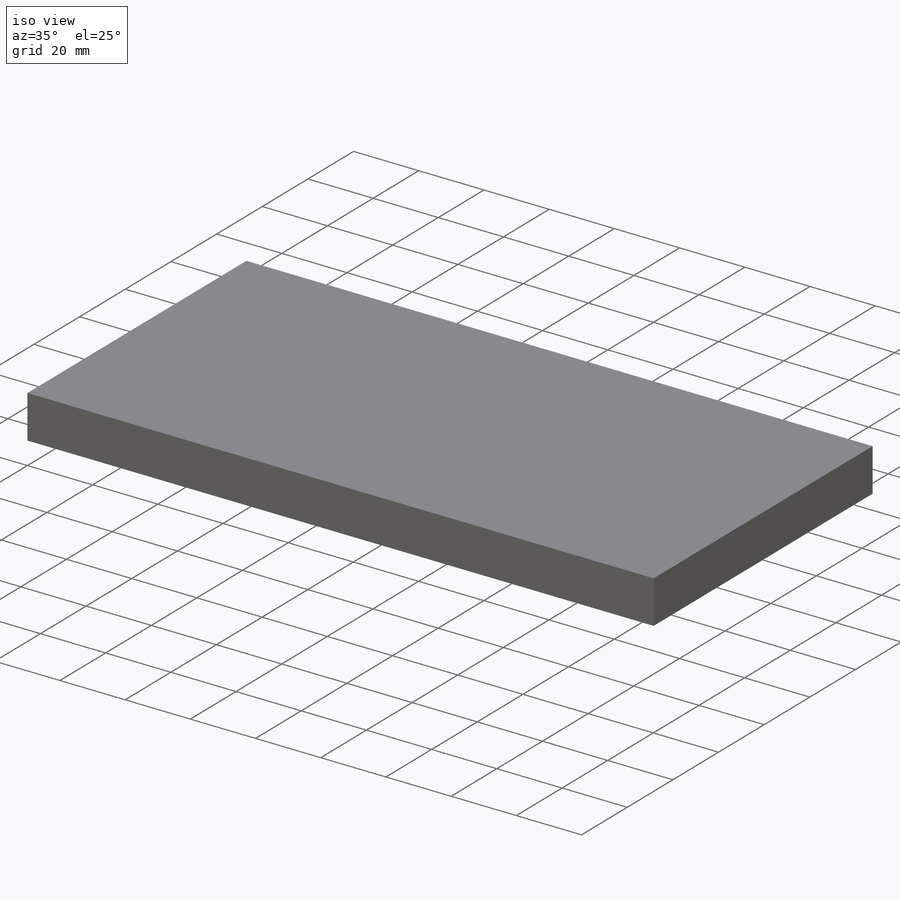
[diagram: iso view]
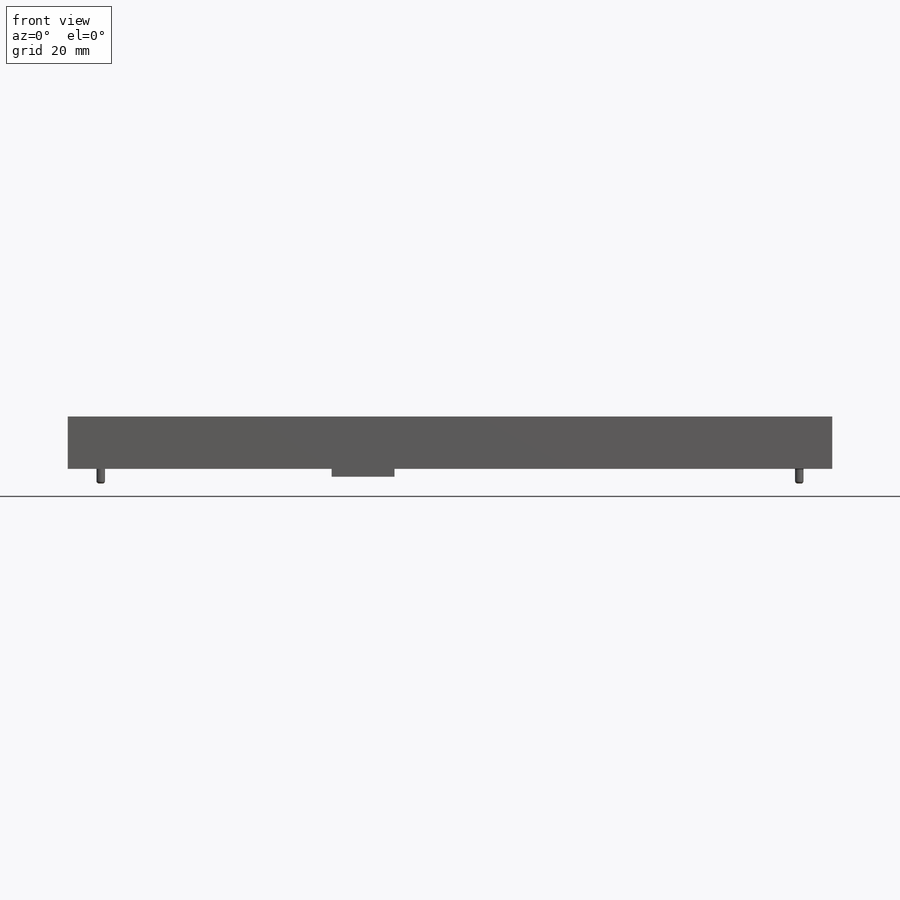
[diagram: front view]
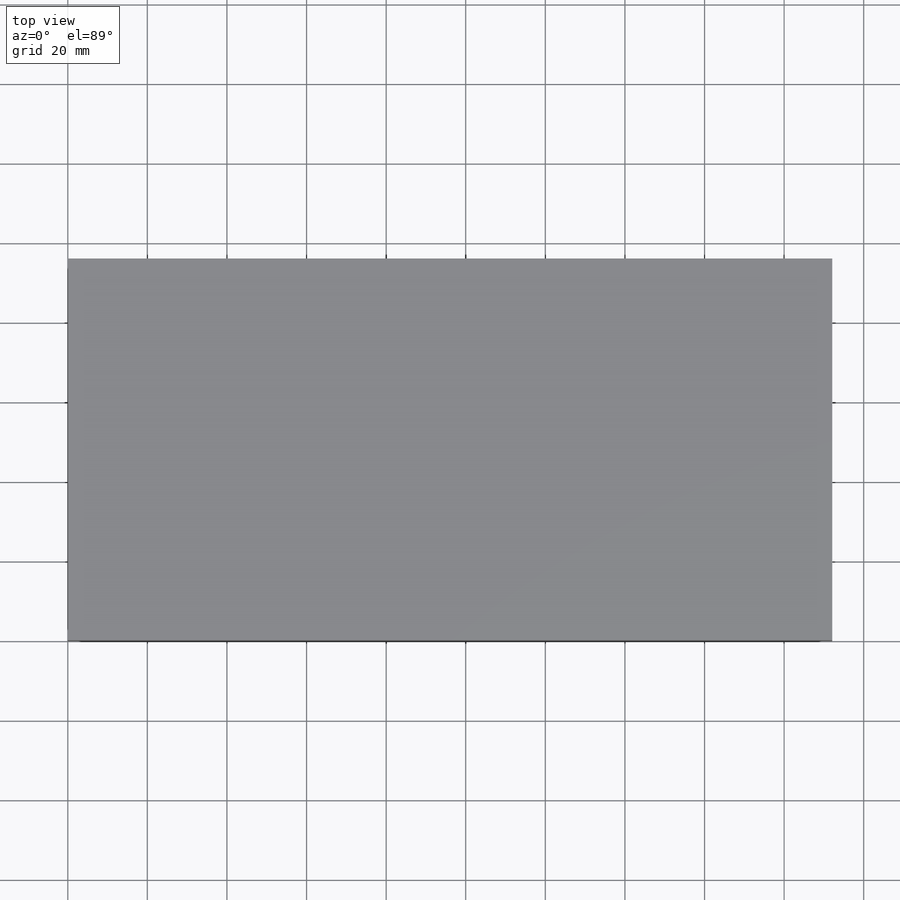
[diagram: top view]
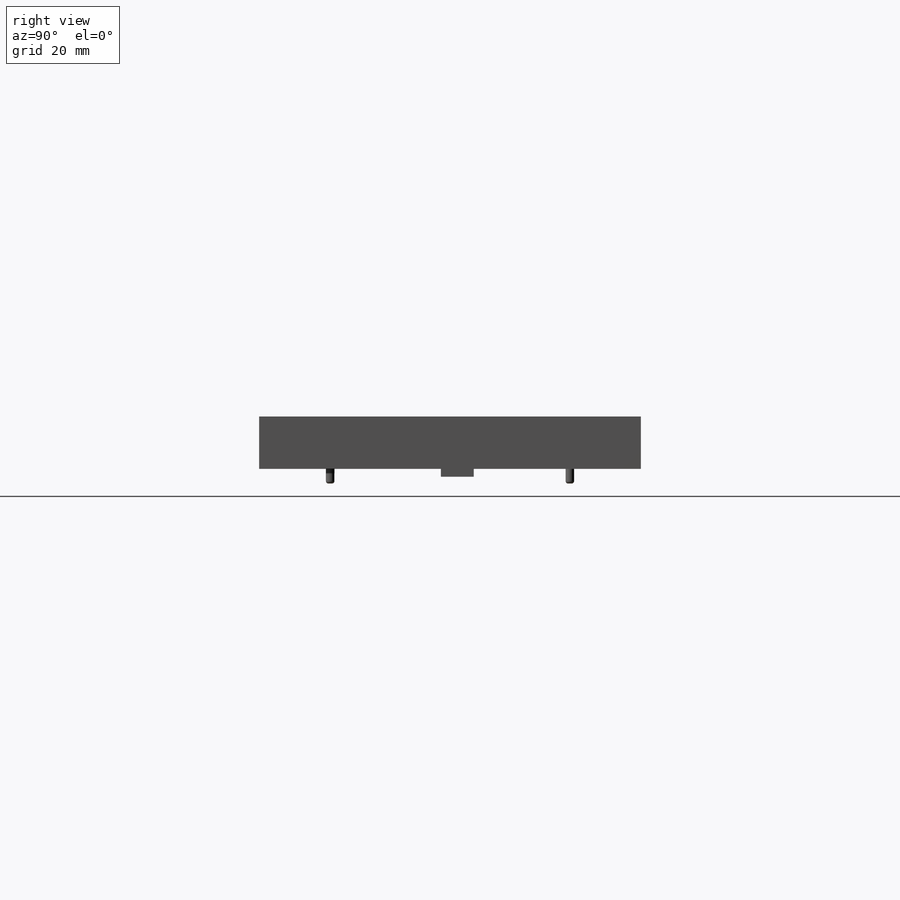
[diagram: right view]
SOLIDWORKS PART (.sldprt)
format: sldprt  version: not decoded by parser v0  size: 243,712 bytes
history: native  units: mm
features: sketch x6, extrude x4, cut_extrude x2, fillet x2, material x1 (+11 scaffold rows collapsed)
feature tree (26):
  scaffold x11  (default folders/planes/origin — collapsed)
  material  "CA"
  sketch  "Sketch1"  dims[D1=192.0875mm D2=95.9358mm]
  extrude  "Boss-Extrude1"  Depth=13.1826mm
  sketch  "Sketch2"  dims[D1=12.954mm D2=12.954mm D3=12.954mm D4=12.954mm]
  cut_extrude  "Cut-Extrude1"  Depth=7.874mm
  sketch  "Sketch3"  dims[D1=2.54mm D2=0.254mm D3=10.16mm]
  cut_extrude  "Cut-Extrude2"  Depth=7.874mm
  sketch  "Sketch4"  dims[D1=15.7988mm D2=8.2804mm D3=29.0322mm D4=53.34mm]
  extrude  "Boss-Extrude2"  Depth=9.8298mm
  sketch  "Sketch5"  dims[D1=8.89mm D2=27.94mm D3=3.8608mm D4=20.6248mm]
  extrude  "Boss-Extrude3"  Depth=7.874mm
  sketch  "Sketch6"  dims[c1.D1=2.1336mm c1.D2=5.7658mm c1.D3=4.6736mm c2.D2=4.9022mm]
  extrude  "Boss-Extrude4"  Depth=3.683mm
  fillet  "Fillet1"  Radius=5.08mm
  fillet  "Fillet2"  Radius=0.635mm
decode coverage: 14 of 14 modeling features carry decoded parameters
note: suppression state not decoded; provenance and decode notes live in map.json
